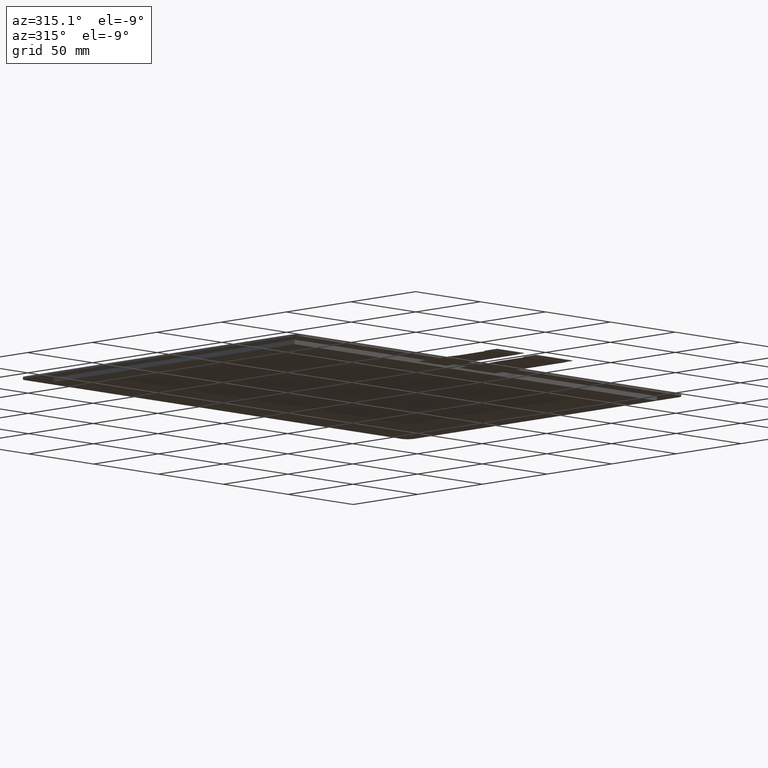
[diagram: clean part render]
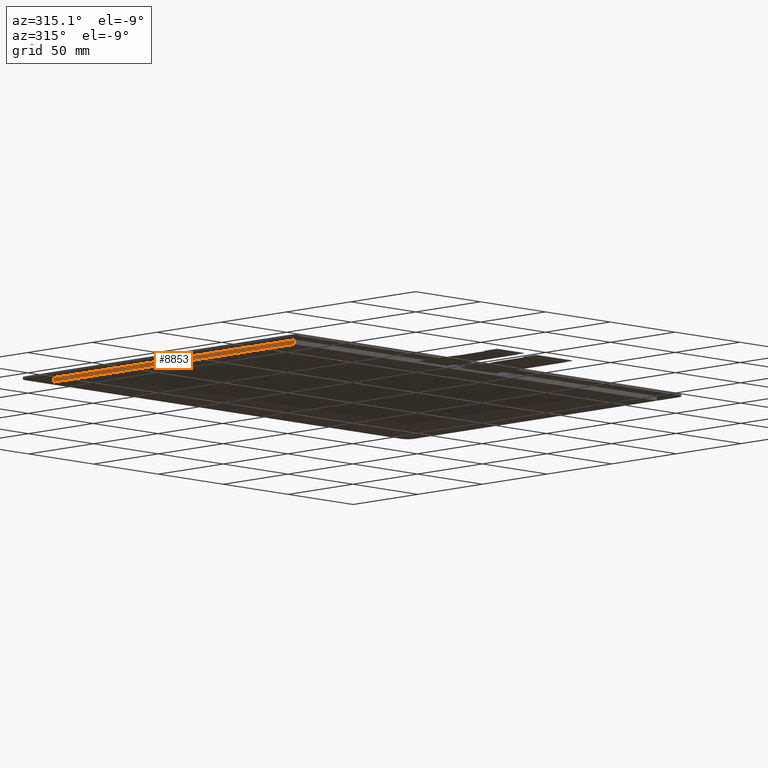
[diagram: same view with one face highlighted and labeled with its STEP entity id]
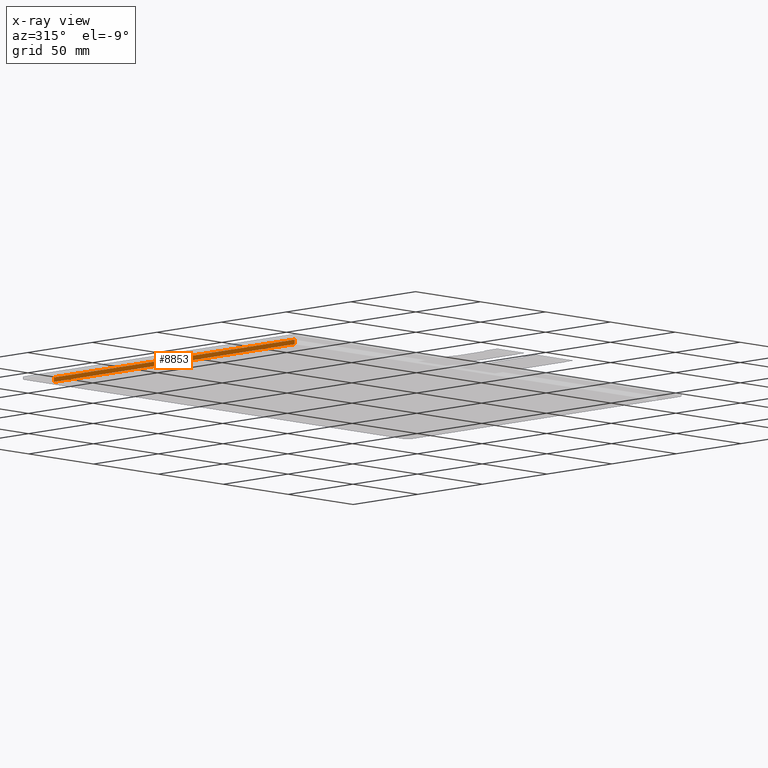
[diagram: x-ray of the same camera — body ghosted, the highlighted face saturated]
A machine part, auxiliary view. The second image highlights one B-rep face of the part: STEP entity #8853.
The next image is the same camera in x-ray: the body ghosted, the highlighted face saturated — about 0% of this face is hidden behind the body in this view.
In plain terms, the highlighted planar face has unit normal (-1, -0, 0).
Its self-contained STEP definition (entity closure, byte-faithful):
#486=FACE_OUTER_BOUND('',#913,.T.);
#913=EDGE_LOOP('',(#7985,#7986,#7987,#7988));
#952=LINE('',#11517,#2197);
#2157=LINE('',#13936,#3402);
#2158=LINE('',#13938,#3403);
#2159=LINE('',#13939,#3404);
#2197=VECTOR('',#9393,10.);
#3402=VECTOR('',#11416,10.);
#3403=VECTOR('',#11417,10.);
#3404=VECTOR('',#11418,10.);
#3438=VERTEX_POINT('',#11515);
#3439=VERTEX_POINT('',#11516);
#4244=VERTEX_POINT('',#13935);
#4245=VERTEX_POINT('',#13937);
#4288=EDGE_CURVE('',#3438,#3439,#952,.T.);
#5495=EDGE_CURVE('',#3438,#4244,#2157,.T.);
#5496=EDGE_CURVE('',#4245,#4244,#2158,.T.);
#5497=EDGE_CURVE('',#3439,#4245,#2159,.T.);
#7985=ORIENTED_EDGE('',*,*,#4288,.F.);
#7986=ORIENTED_EDGE('',*,*,#5495,.T.);
#7987=ORIENTED_EDGE('',*,*,#5496,.F.);
#7988=ORIENTED_EDGE('',*,*,#5497,.F.);
#8428=PLANE('',#9310);
#8853=ADVANCED_FACE('',(#486),#8428,.T.);
#9310=AXIS2_PLACEMENT_3D('',#13934,#11414,#11415);
#9393=DIRECTION('',(9.53492667418277E-17,-1.,0.));
#11414=DIRECTION('center_axis',(-1.,-9.53492667418277E-17,0.));
#11415=DIRECTION('ref_axis',(-9.53492667418277E-17,1.,0.));
#11416=DIRECTION('',(0.,0.,-1.));
#11417=DIRECTION('',(-9.53492667418277E-17,1.,0.));
#11418=DIRECTION('',(0.,0.,-1.));
#11515=CARTESIAN_POINT('',(-140.6,89.6000000000001,0.));
#11516=CARTESIAN_POINT('',(-140.6,-96.7,0.));
#11517=CARTESIAN_POINT('',(-140.6,89.6000000000001,0.));
#13934=CARTESIAN_POINT('Origin',(-140.6,-96.7,0.));
#13935=CARTESIAN_POINT('',(-140.6,89.6000000000001,-2.5));
#13936=CARTESIAN_POINT('',(-140.6,89.6000000000001,0.));
#13937=CARTESIAN_POINT('',(-140.6,-96.7,-2.5));
#13938=CARTESIAN_POINT('',(-140.6,89.6000000000001,-2.5));
#13939=CARTESIAN_POINT('',(-140.6,-96.7,0.));